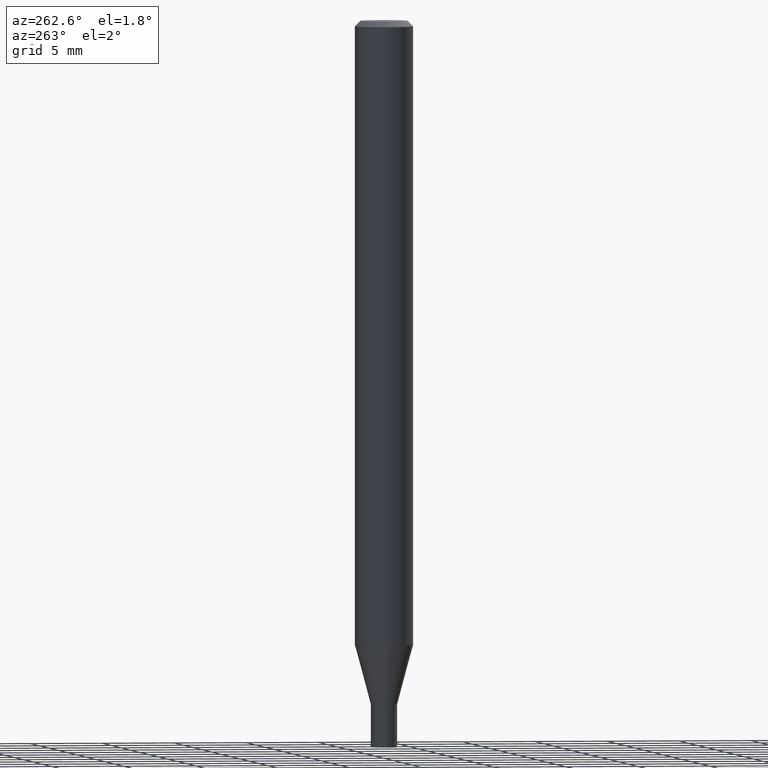
[diagram: clean part render]
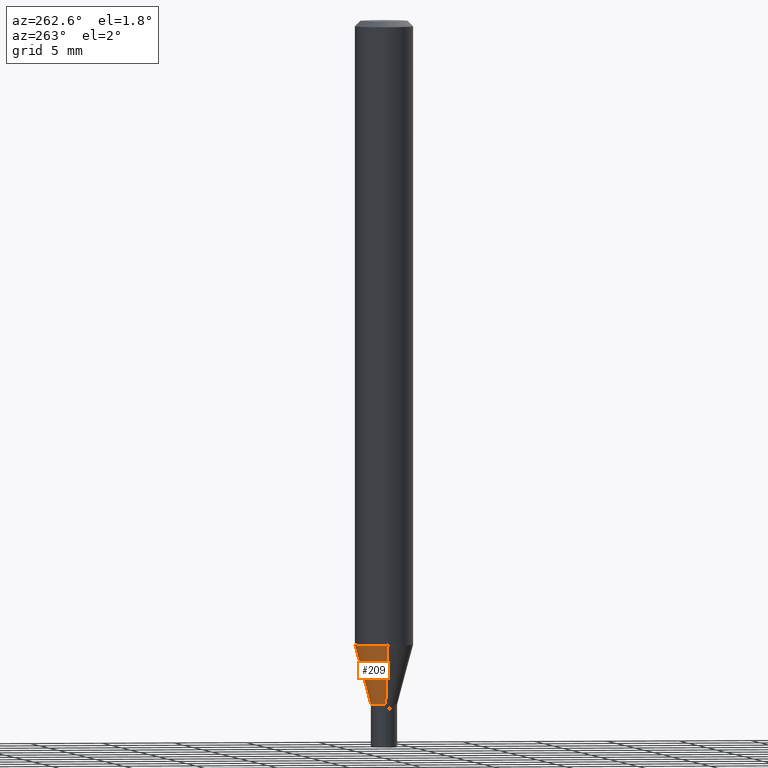
[diagram: same view with one face highlighted and labeled with its STEP entity id]
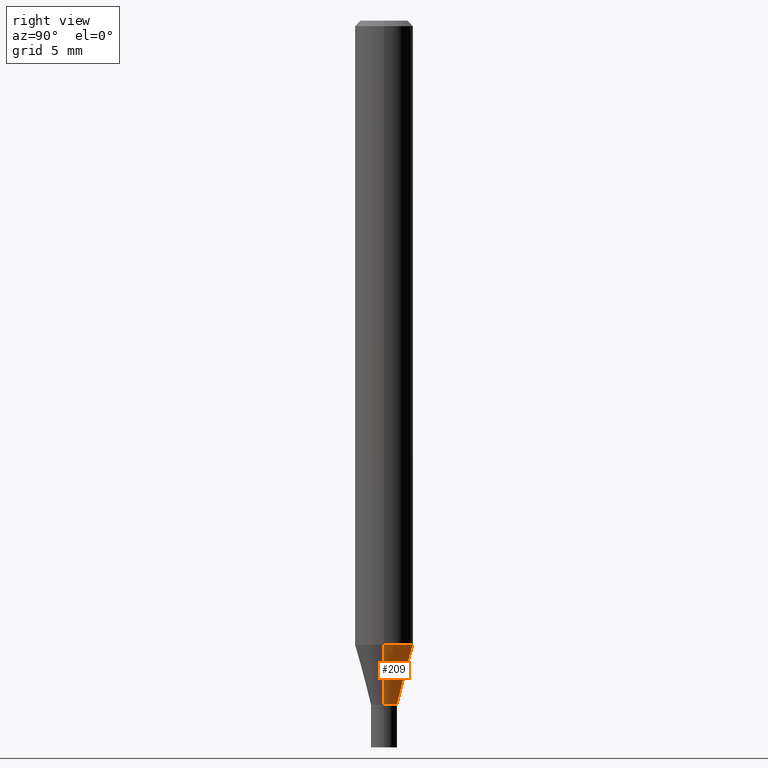
[diagram: same view with one face highlighted and labeled with its STEP entity id]
A machine part, auxiliary view. The second image highlights one B-rep face of the part: STEP entity #209.
A second angle (right view) of the same face is appended — the face is thin or edge-on in the first view.
In plain terms, the highlighted conical surface has half-angle 15 deg.
Its self-contained STEP definition (entity closure, byte-faithful):
#10 = AXIS2_PLACEMENT_3D ( 'NONE', #381, #208, #296 ) ;
#48 = EDGE_LOOP ( 'NONE', ( #288, #145, #94, #429 ) ) ;
#56 = VERTEX_POINT ( 'NONE', #197 ) ;
#79 = DIRECTION ( 'NONE',  ( -2.445468806185136597E-29, 3.491481338843145583E-15, 1.000000000000000000 ) ) ;
#80 = DIRECTION ( 'NONE',  ( 1.000000000000000000, -6.982962677686269077E-15, 0.000000000000000000 ) ) ;
#84 = CIRCLE ( 'NONE', #10, 0.03544999999999992601 ) ;
#94 = ORIENTED_EDGE ( 'NONE', *, *, #123, .F. ) ;
#96 = VERTEX_POINT ( 'NONE', #406 ) ;
#120 = CARTESIAN_POINT ( 'NONE',  ( 4.530230963457965142E-29, -6.467969180206926313E-15, -1.852500000000000036 ) ) ;
#123 = EDGE_CURVE ( 'NONE', #258, #330, #144, .T. ) ;
#144 = CIRCLE ( 'NONE', #359, 0.07875000000000000056 ) ;
#145 = ORIENTED_EDGE ( 'NONE', *, *, #332, .T. ) ;
#148 = CARTESIAN_POINT ( 'NONE',  ( 0.03544999999999992601, -6.715515207130904197E-15, -1.852500000000000036 ) ) ;
#154 = VECTOR ( 'NONE', #171, 39.37007874015748143 ) ;
#171 = DIRECTION ( 'NONE',  ( 0.2588190451025215166, 1.565188264969620784E-15, 0.9659258262890679791 ) ) ;
#184 = AXIS2_PLACEMENT_3D ( 'NONE', #120, #79, #80 ) ;
#191 = LINE ( 'NONE', #295, #211 ) ;
#197 = CARTESIAN_POINT ( 'NONE',  ( -0.03544999999999992601, -5.780141426595187808E-15, -1.852500000000000036 ) ) ;
#199 = CARTESIAN_POINT ( 'NONE',  ( 4.135048584488730771E-29, -5.903753477221482700E-15, -1.690902200032267766 ) ) ;
#202 = DIRECTION ( 'NONE',  ( -2.445468806185136597E-29, 3.491481338843145583E-15, 1.000000000000000000 ) ) ;
#208 = DIRECTION ( 'NONE',  ( -2.445468806185136597E-29, 3.491481338843145583E-15, 1.000000000000000000 ) ) ;
#209 = ADVANCED_FACE ( 'NONE', ( #437 ), #261, .T. ) ;
#211 = VECTOR ( 'NONE', #324, 39.37007874015748143 ) ;
#216 = LINE ( 'NONE', #148, #154 ) ;
#250 = EDGE_CURVE ( 'NONE', #96, #258, #216, .T. ) ;
#258 = VERTEX_POINT ( 'NONE', #313 ) ;
#261 = CONICAL_SURFACE ( 'NONE', #184, 0.03544999999999992601, 0.2617993877991502405 ) ;
#263 = CARTESIAN_POINT ( 'NONE',  ( -0.07875000000000000056, -5.344201072810403898E-15, -1.690902200032267766 ) ) ;
#265 = DIRECTION ( 'NONE',  ( 1.000000000000000000, -6.982962677686261977E-15, 0.000000000000000000 ) ) ;
#288 = ORIENTED_EDGE ( 'NONE', *, *, #397, .T. ) ;
#295 = CARTESIAN_POINT ( 'NONE',  ( -0.03544999999999992601, -6.216081780379971717E-15, -1.852500000000000036 ) ) ;
#296 = DIRECTION ( 'NONE',  ( 1.000000000000000000, -6.982962677686269077E-15, 0.000000000000000000 ) ) ;
#313 = CARTESIAN_POINT ( 'NONE',  ( 0.07875000000000000056, -6.453661788089276045E-15, -1.690902200032267766 ) ) ;
#324 = DIRECTION ( 'NONE',  ( -0.2588190451025215166, 5.211531920934551042E-15, 0.9659258262890679791 ) ) ;
#330 = VERTEX_POINT ( 'NONE', #263 ) ;
#332 = EDGE_CURVE ( 'NONE', #56, #330, #191, .T. ) ;
#359 = AXIS2_PLACEMENT_3D ( 'NONE', #199, #202, #265 ) ;
#381 = CARTESIAN_POINT ( 'NONE',  ( 4.530230963457965142E-29, -6.467969180206926313E-15, -1.852500000000000036 ) ) ;
#397 = EDGE_CURVE ( 'NONE', #96, #56, #84, .T. ) ;
#406 = CARTESIAN_POINT ( 'NONE',  ( 0.03544999999999992601, -6.715515207130904197E-15, -1.852500000000000036 ) ) ;
#429 = ORIENTED_EDGE ( 'NONE', *, *, #250, .F. ) ;
#437 = FACE_OUTER_BOUND ( 'NONE', #48, .T. ) ;